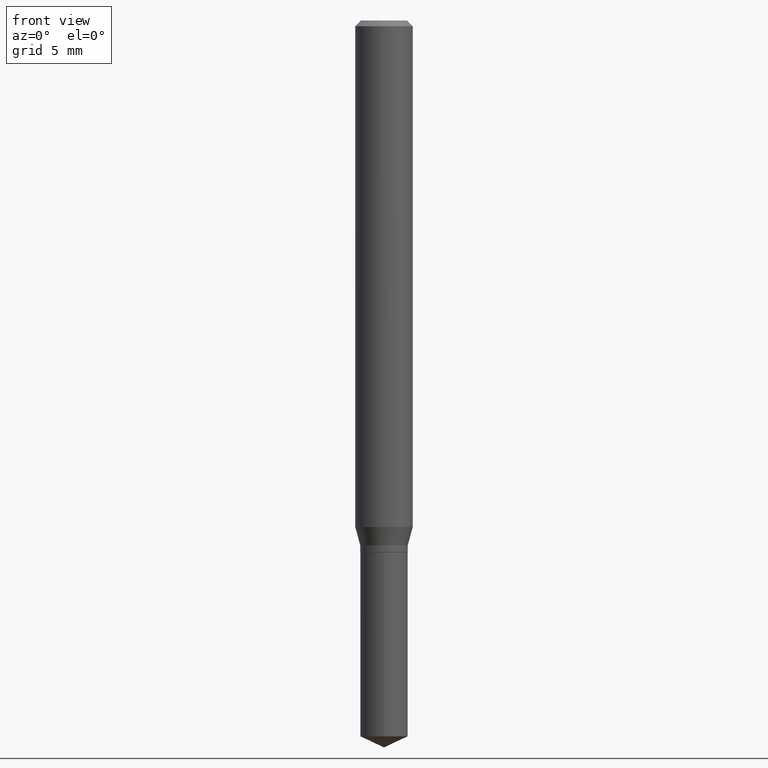
[diagram: clean part render]
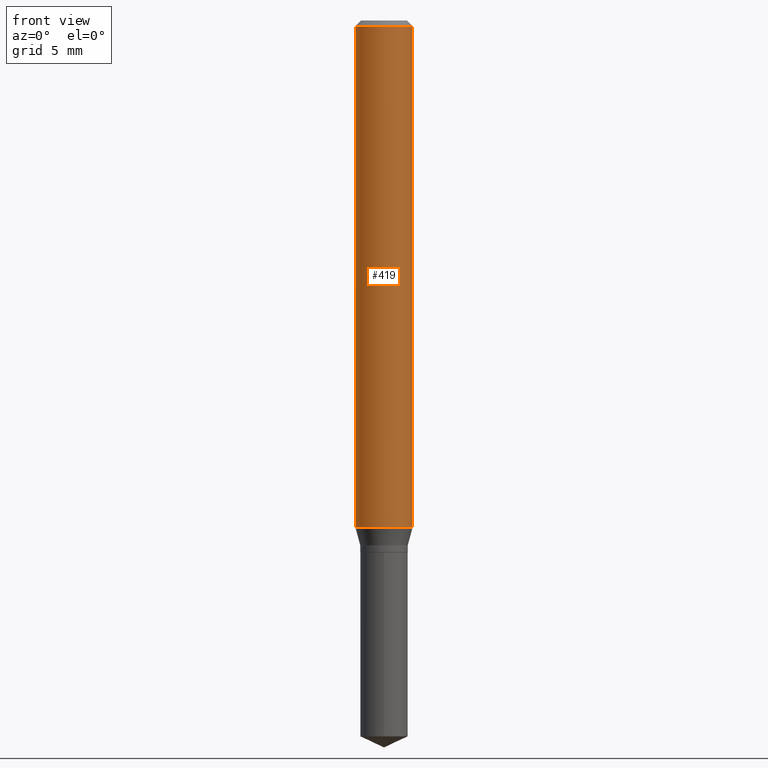
[diagram: same view with one face highlighted and labeled with its STEP entity id]
A machine part, front view. The second image highlights one B-rep face of the part: STEP entity #419.
In plain terms, the highlighted cylindrical surface (edge-blend (fillet) strip) has radius 1.4999 mm, axis along (-0, 0, 1).
Its self-contained STEP definition (entity closure, byte-faithful):
#8 = DIRECTION ( 'NONE',  ( -2.445468806185136597E-29, 3.491481338843145583E-15, 1.000000000000000000 ) ) ;
#17 = DIRECTION ( 'NONE',  ( -2.445468806185136877E-29, 3.491481338843145188E-15, 1.000000000000000000 ) ) ;
#22 = DIRECTION ( 'NONE',  ( 1.000000000000000000, -6.982962677686266711E-15, 0.000000000000000000 ) ) ;
#25 = AXIS2_PLACEMENT_3D ( 'NONE', #473, #391, #22 ) ;
#64 = CARTESIAN_POINT ( 'NONE',  ( 0.05904999999999999832, -4.535783407291118600E-16, -0.01181000000000007565 ) ) ;
#74 = EDGE_LOOP ( 'NONE', ( #147, #250, #271, #80 ) ) ;
#80 = ORIENTED_EDGE ( 'NONE', *, *, #285, .F. ) ;
#95 = CARTESIAN_POINT ( 'NONE',  ( -0.05905000000000006771, 4.195754854663396409E-16, -2.904631170795525045E-30 ) ) ;
#103 = CARTESIAN_POINT ( 'NONE',  ( -0.05905000000000013016, -3.219570687426562421E-15, -1.042292889383932275 ) ) ;
#108 = VERTEX_POINT ( 'NONE', #177 ) ;
#109 = DIRECTION ( 'NONE',  ( 1.000000000000000000, -6.982962677686265133E-15, 0.000000000000000000 ) ) ;
#125 = VERTEX_POINT ( 'NONE', #103 ) ;
#126 = AXIS2_PLACEMENT_3D ( 'NONE', #181, #260, #109 ) ;
#144 = EDGE_CURVE ( 'NONE', #125, #180, #427, .T. ) ;
#147 = ORIENTED_EDGE ( 'NONE', *, *, #144, .F. ) ;
#162 = CARTESIAN_POINT ( 'NONE',  ( 0.05905000000000006771, -4.123439461173745257E-16, 2.879382386107503723E-30 ) ) ;
#167 = DIRECTION ( 'NONE',  ( 1.000000000000000000, -6.982962677686266711E-15, 4.876176775795936353E-29 ) ) ;
#177 = CARTESIAN_POINT ( 'NONE',  ( 0.05905000000000013016, -4.051490119010276834E-15, -1.042292889383932275 ) ) ;
#180 = VERTEX_POINT ( 'NONE', #471 ) ;
#181 = CARTESIAN_POINT ( 'NONE',  ( 2.548894747896981687E-29, -3.639146172892902703E-15, -1.042292889383932275 ) ) ;
#202 = AXIS2_PLACEMENT_3D ( 'NONE', #377, #8, #167 ) ;
#239 = VECTOR ( 'NONE', #449, 39.37007874015748143 ) ;
#249 = FACE_OUTER_BOUND ( 'NONE', #74, .T. ) ;
#250 = ORIENTED_EDGE ( 'NONE', *, *, #321, .T. ) ;
#260 = DIRECTION ( 'NONE',  ( -2.445468806185136597E-29, 3.491481338843145583E-15, 1.000000000000000000 ) ) ;
#271 = ORIENTED_EDGE ( 'NONE', *, *, #302, .T. ) ;
#285 = EDGE_CURVE ( 'NONE', #180, #342, #327, .T. ) ;
#302 = EDGE_CURVE ( 'NONE', #108, #342, #378, .T. ) ;
#311 = CIRCLE ( 'NONE', #126, 0.05905000000000013016 ) ;
#321 = EDGE_CURVE ( 'NONE', #125, #108, #311, .T. ) ;
#327 = CIRCLE ( 'NONE', #25, 0.05904999999999999832 ) ;
#342 = VERTEX_POINT ( 'NONE', #64 ) ;
#377 = CARTESIAN_POINT ( 'NONE',  ( 0.000000000000000000, 0.000000000000000000, 0.000000000000000000 ) ) ;
#378 = LINE ( 'NONE', #162, #239 ) ;
#391 = DIRECTION ( 'NONE',  ( -2.445468806185136597E-29, 3.491481338843145583E-15, 1.000000000000000000 ) ) ;
#408 = CYLINDRICAL_SURFACE ( 'NONE', #202, 0.05905000000000006771 ) ;
#419 = ADVANCED_FACE ( 'NONE', ( #249 ), #408, .T. ) ;
#427 = LINE ( 'NONE', #95, #465 ) ;
#449 = DIRECTION ( 'NONE',  ( -2.445468806185136877E-29, 3.491481338843145188E-15, 1.000000000000000000 ) ) ;
#465 = VECTOR ( 'NONE', #17, 39.37007874015748143 ) ;
#471 = CARTESIAN_POINT ( 'NONE',  ( -0.05904999999999999832, -1.420614798285979737E-15, -0.01181000000000007565 ) ) ;
#473 = CARTESIAN_POINT ( 'NONE',  ( 2.888098660104664642E-31, -4.123439461173780879E-17, -0.01181000000000007565 ) ) ;